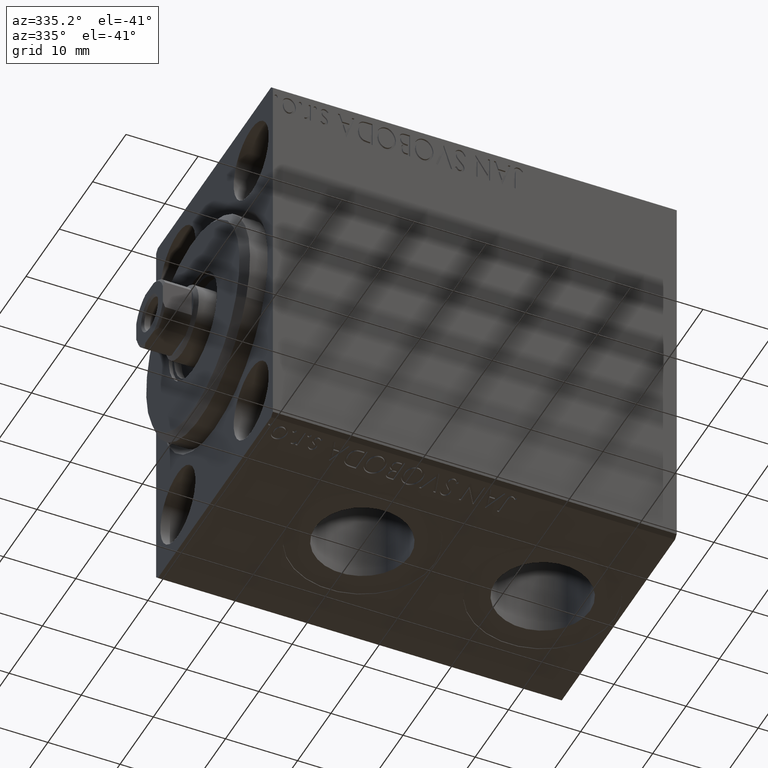
[diagram: clean part render]
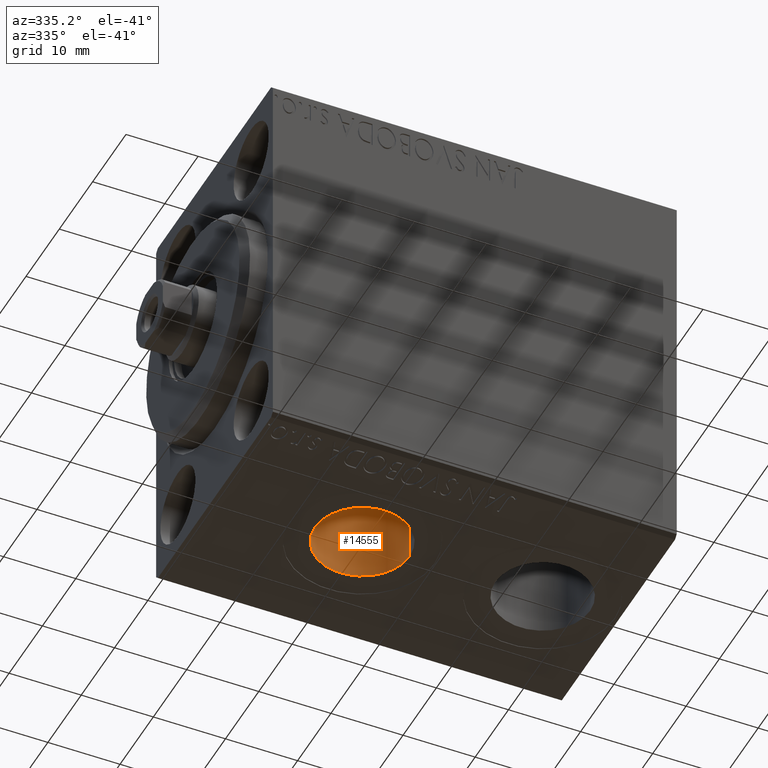
[diagram: same view with one face highlighted and labeled with its STEP entity id]
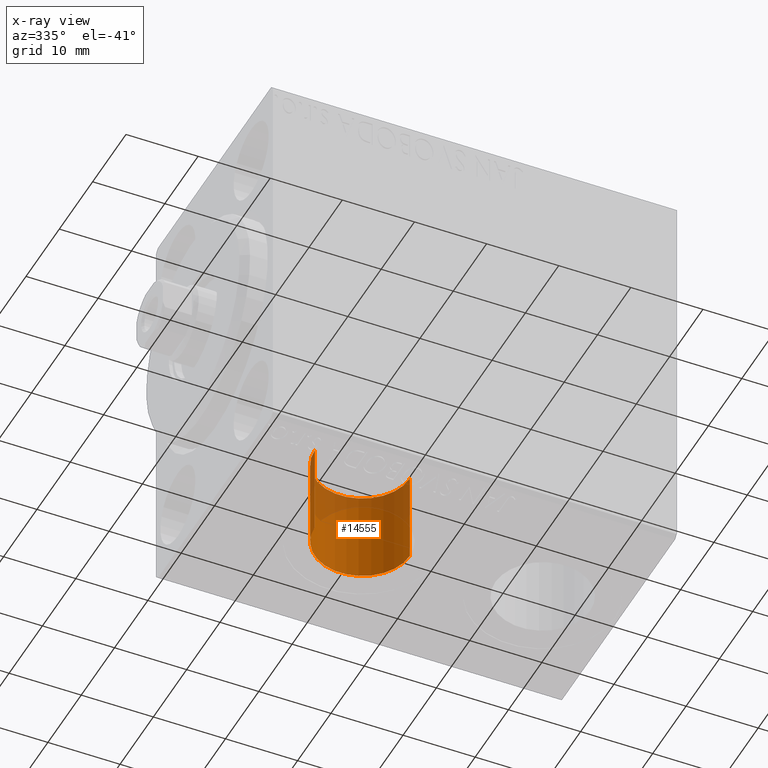
[diagram: x-ray of the same camera — body ghosted, the highlighted face saturated]
A machine part, auxiliary view. The second image highlights one B-rep face of the part: STEP entity #14555.
The next image is the same camera in x-ray: the body ghosted, the highlighted face saturated — about 26% of this face is hidden behind the body in this view.
In plain terms, the highlighted cylindrical surface (partial cylindrical patch) has radius 6.58 mm, axis along (-0, -0, -1).
Its self-contained STEP definition (entity closure, byte-faithful):
#2419 = DIRECTION ( 'NONE',  ( -1.000000000000000000, 0.000000000000000000, 0.000000000000000000 ) ) ;
#3872 = CARTESIAN_POINT ( 'NONE',  ( 20.50000000000000355, -2.726986211408916281E-15, -14.50000000000000355 ) ) ;
#7560 = VERTEX_POINT ( 'NONE', #37668 ) ;
#7806 = CARTESIAN_POINT ( 'NONE',  ( 27.08000000000000540, -1.921168617569958028E-15, -14.50000000000000355 ) ) ;
#8500 = VECTOR ( 'NONE', #29131, 1000.000000000000000 ) ;
#9861 = DIRECTION ( 'NONE',  ( 0.000000000000000000, 0.000000000000000000, -1.000000000000000000 ) ) ;
#10223 = DIRECTION ( 'NONE',  ( -0.000000000000000000, -0.000000000000000000, -1.000000000000000000 ) ) ;
#10550 = CYLINDRICAL_SURFACE ( 'NONE', #19743, 6.580000000000002736 ) ;
#10952 = AXIS2_PLACEMENT_3D ( 'NONE', #36354, #9861, #37236 ) ;
#13618 = ORIENTED_EDGE ( 'NONE', *, *, #19498, .F. ) ;
#13898 = EDGE_CURVE ( 'NONE', #7560, #31300, #43644, .T. ) ;
#14555 = ADVANCED_FACE ( 'NONE', ( #24135 ), #10550, .F. ) ;
#15777 = DIRECTION ( 'NONE',  ( 0.000000000000000000, 0.000000000000000000, -1.000000000000000000 ) ) ;
#17443 = DIRECTION ( 'NONE',  ( -1.000000000000000000, 0.000000000000000000, 0.000000000000000000 ) ) ;
#17520 = ORIENTED_EDGE ( 'NONE', *, *, #13898, .T. ) ;
#18758 = AXIS2_PLACEMENT_3D ( 'NONE', #29155, #15777, #2419 ) ;
#19171 = CARTESIAN_POINT ( 'NONE',  ( 13.92000000000000171, -2.726986211408916281E-15, -27.40000000000000568 ) ) ;
#19498 = EDGE_CURVE ( 'NONE', #35784, #42121, #29794, .T. ) ;
#19743 = AXIS2_PLACEMENT_3D ( 'NONE', #3872, #24351, #17443 ) ;
#23378 = CARTESIAN_POINT ( 'NONE',  ( 13.92000000000000171, -2.726986211408916281E-15, -14.50000000000000355 ) ) ;
#24135 = FACE_OUTER_BOUND ( 'NONE', #27410, .T. ) ;
#24351 = DIRECTION ( 'NONE',  ( -0.000000000000000000, -0.000000000000000000, -1.000000000000000000 ) ) ;
#27410 = EDGE_LOOP ( 'NONE', ( #13618, #35837, #17520, #40761 ) ) ;
#28719 = CARTESIAN_POINT ( 'NONE',  ( 27.08000000000000540, -1.921168617569958028E-15, -27.40000000000000568 ) ) ;
#29131 = DIRECTION ( 'NONE',  ( -0.000000000000000000, -0.000000000000000000, -1.000000000000000000 ) ) ;
#29155 = CARTESIAN_POINT ( 'NONE',  ( 20.50000000000000355, -2.726986211408916281E-15, -27.40000000000000568 ) ) ;
#29686 = VECTOR ( 'NONE', #10223, 1000.000000000000000 ) ;
#29794 = LINE ( 'NONE', #43369, #8500 ) ;
#31300 = VERTEX_POINT ( 'NONE', #19171 ) ;
#35784 = VERTEX_POINT ( 'NONE', #7806 ) ;
#35837 = ORIENTED_EDGE ( 'NONE', *, *, #38561, .F. ) ;
#36354 = CARTESIAN_POINT ( 'NONE',  ( 20.50000000000000355, -2.726986211408916281E-15, -14.50000000000000355 ) ) ;
#37236 = DIRECTION ( 'NONE',  ( -1.000000000000000000, 0.000000000000000000, 0.000000000000000000 ) ) ;
#37668 = CARTESIAN_POINT ( 'NONE',  ( 13.92000000000000171, -2.726986211408916281E-15, -14.50000000000000355 ) ) ;
#38561 = EDGE_CURVE ( 'NONE', #7560, #35784, #39387, .T. ) ;
#39387 = CIRCLE ( 'NONE', #10952, 6.580000000000002736 ) ;
#40761 = ORIENTED_EDGE ( 'NONE', *, *, #42093, .T. ) ;
#40793 = CIRCLE ( 'NONE', #18758, 6.580000000000002736 ) ;
#42093 = EDGE_CURVE ( 'NONE', #31300, #42121, #40793, .T. ) ;
#42121 = VERTEX_POINT ( 'NONE', #28719 ) ;
#43369 = CARTESIAN_POINT ( 'NONE',  ( 27.08000000000000540, -1.921168617569958028E-15, -14.50000000000000355 ) ) ;
#43644 = LINE ( 'NONE', #23378, #29686 ) ;